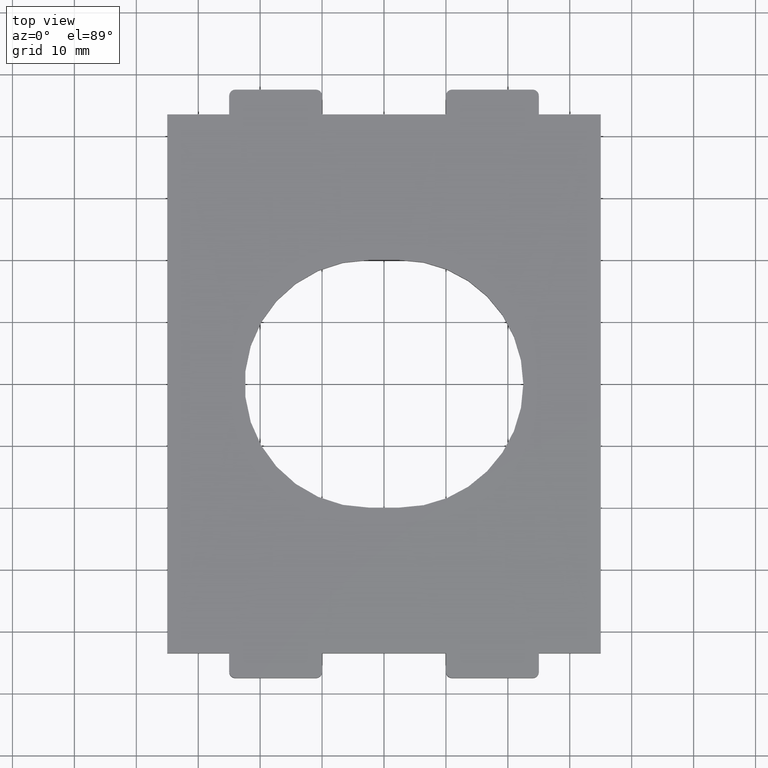
[diagram: clean part render]
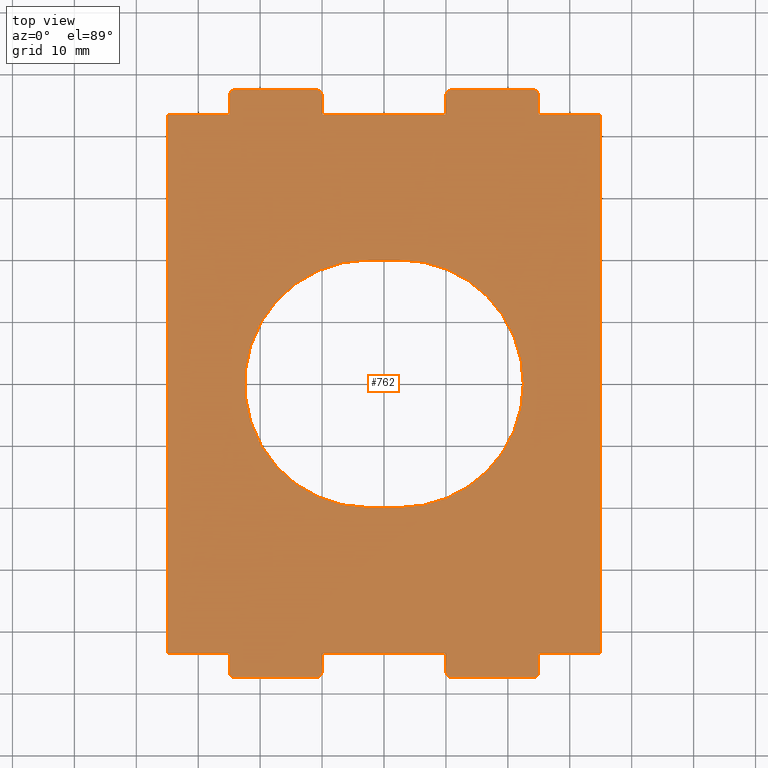
[diagram: same view with one face highlighted and labeled with its STEP entity id]
A machine part, top view. The second image highlights one B-rep face of the part: STEP entity #762.
In plain terms, the highlighted planar face has unit normal (0, 0, -1).
Its self-contained STEP definition (entity closure, byte-faithful):
#6 = VECTOR ( 'NONE', #397, 1000.000000000000000 ) ;
#7 = CARTESIAN_POINT ( 'NONE',  ( -23.99999999999998579, -46.49999999999998579, 2.500000000000000000 ) ) ;
#9 = CARTESIAN_POINT ( 'NONE',  ( -24.99999999999998579, 43.49999999999998579, 2.500000000000000000 ) ) ;
#10 = DIRECTION ( 'NONE',  ( 1.000000000000000000, 0.000000000000000000, 0.000000000000000000 ) ) ;
#12 = DIRECTION ( 'NONE',  ( -0.000000000000000000, 0.000000000000000000, 1.000000000000000000 ) ) ;
#23 = VERTEX_POINT ( 'NONE', #997 ) ;
#26 = EDGE_CURVE ( 'NONE', #224, #1124, #155, .T. ) ;
#28 = CARTESIAN_POINT ( 'NONE',  ( 35.00000000000000000, 43.50000000000001421, 2.500000000000000000 ) ) ;
#29 = EDGE_CURVE ( 'NONE', #809, #396, #336, .T. ) ;
#35 = EDGE_CURVE ( 'NONE', #81, #1177, #923, .T. ) ;
#36 = CARTESIAN_POINT ( 'NONE',  ( -10.99999999999998934, -47.49999999999998579, 2.500000000000000000 ) ) ;
#39 = DIRECTION ( 'NONE',  ( -0.000000000000000000, -0.000000000000000000, -1.000000000000000000 ) ) ;
#41 = DIRECTION ( 'NONE',  ( 1.000000000000000000, 1.982541115402065110E-16, -0.000000000000000000 ) ) ;
#45 = CARTESIAN_POINT ( 'NONE',  ( -24.99999999999998579, -46.49999999999998579, 2.500000000000000000 ) ) ;
#46 = ORIENTED_EDGE ( 'NONE', *, *, #486, .F. ) ;
#54 = DIRECTION ( 'NONE',  ( 1.000000000000000000, 0.000000000000000000, 0.000000000000000000 ) ) ;
#58 = CARTESIAN_POINT ( 'NONE',  ( -10.99999999999998934, 47.49999999999998579, 2.500000000000000000 ) ) ;
#61 = CARTESIAN_POINT ( 'NONE',  ( 10.00000000000001599, -43.49999999999999289, 2.500000000000000000 ) ) ;
#71 = AXIS2_PLACEMENT_3D ( 'NONE', #1151, #969, #502 ) ;
#73 = VERTEX_POINT ( 'NONE', #149 ) ;
#81 = VERTEX_POINT ( 'NONE', #421 ) ;
#88 = CARTESIAN_POINT ( 'NONE',  ( 10.00000000000001599, -47.49999999999998579, 2.500000000000000000 ) ) ;
#92 = EDGE_CURVE ( 'NONE', #202, #130, #715, .T. ) ;
#94 = DIRECTION ( 'NONE',  ( 0.000000000000000000, -1.000000000000000000, 0.000000000000000000 ) ) ;
#103 = CARTESIAN_POINT ( 'NONE',  ( -34.99999999999999289, -43.50000000000000000, 2.500000000000000000 ) ) ;
#106 = EDGE_CURVE ( 'NONE', #1182, #973, #546, .T. ) ;
#115 = AXIS2_PLACEMENT_3D ( 'NONE', #7, #12, #391 ) ;
#116 = VERTEX_POINT ( 'NONE', #704 ) ;
#126 = CARTESIAN_POINT ( 'NONE',  ( 2.500000000000000000, -3.469446951953614189E-15, 2.500000000000000000 ) ) ;
#130 = VERTEX_POINT ( 'NONE', #733 ) ;
#131 = DIRECTION ( 'NONE',  ( -1.000000000000000000, -1.982541115402065110E-16, 0.000000000000000000 ) ) ;
#132 = AXIS2_PLACEMENT_3D ( 'NONE', #1118, #569, #1138 ) ;
#140 = DIRECTION ( 'NONE',  ( -0.000000000000000000, 0.000000000000000000, 1.000000000000000000 ) ) ;
#145 = CARTESIAN_POINT ( 'NONE',  ( 25.00000000000001421, 43.50000000000001421, 2.500000000000000000 ) ) ;
#149 = CARTESIAN_POINT ( 'NONE',  ( 10.00000000000001599, 43.49999999999998579, 2.500000000000000000 ) ) ;
#154 = CARTESIAN_POINT ( 'NONE',  ( 11.00000000000001599, -47.49999999999998579, 2.500000000000000000 ) ) ;
#155 = LINE ( 'NONE', #1163, #1102 ) ;
#161 = EDGE_CURVE ( 'NONE', #656, #702, #557, .T. ) ;
#167 = EDGE_CURVE ( 'NONE', #190, #891, #837, .T. ) ;
#169 = VECTOR ( 'NONE', #420, 1000.000000000000000 ) ;
#182 = ORIENTED_EDGE ( 'NONE', *, *, #92, .F. ) ;
#187 = CIRCLE ( 'NONE', #288, 19.99999999999999645 ) ;
#190 = VERTEX_POINT ( 'NONE', #933 ) ;
#191 = LINE ( 'NONE', #947, #196 ) ;
#193 = DIRECTION ( 'NONE',  ( 1.000000000000000000, 0.000000000000000000, 0.000000000000000000 ) ) ;
#196 = VECTOR ( 'NONE', #1049, 1000.000000000000000 ) ;
#197 = PLANE ( 'NONE',  #732 ) ;
#198 = AXIS2_PLACEMENT_3D ( 'NONE', #850, #473, #10 ) ;
#199 = EDGE_CURVE ( 'NONE', #890, #532, #281, .T. ) ;
#202 = VERTEX_POINT ( 'NONE', #381 ) ;
#208 = VERTEX_POINT ( 'NONE', #1026 ) ;
#216 = ORIENTED_EDGE ( 'NONE', *, *, #199, .F. ) ;
#221 = CARTESIAN_POINT ( 'NONE',  ( 10.00000000000001599, -46.49999999999998579, 2.500000000000000000 ) ) ;
#222 = ORIENTED_EDGE ( 'NONE', *, *, #495, .T. ) ;
#224 = VERTEX_POINT ( 'NONE', #1101 ) ;
#225 = CARTESIAN_POINT ( 'NONE',  ( 25.00000000000001421, 46.49999999999998579, 2.500000000000000000 ) ) ;
#226 = VECTOR ( 'NONE', #690, 1000.000000000000000 ) ;
#240 = DIRECTION ( 'NONE',  ( 1.000000000000000000, 0.000000000000000000, 0.000000000000000000 ) ) ;
#246 = LINE ( 'NONE', #496, #1018 ) ;
#247 = VERTEX_POINT ( 'NONE', #565 ) ;
#249 = CARTESIAN_POINT ( 'NONE',  ( 10.00000000000001599, 46.49999999999998579, 2.500000000000000000 ) ) ;
#254 = LINE ( 'NONE', #630, #529 ) ;
#275 = DIRECTION ( 'NONE',  ( 0.000000000000000000, 0.000000000000000000, 1.000000000000000000 ) ) ;
#281 = LINE ( 'NONE', #88, #583 ) ;
#283 = CARTESIAN_POINT ( 'NONE',  ( -23.99999999999998579, 47.49999999999998579, 2.500000000000000000 ) ) ;
#288 = AXIS2_PLACEMENT_3D ( 'NONE', #1162, #712, #54 ) ;
#289 = EDGE_CURVE ( 'NONE', #1177, #450, #564, .T. ) ;
#299 = CARTESIAN_POINT ( 'NONE',  ( -24.99999999999998579, 46.49999999999998579, 2.500000000000000000 ) ) ;
#313 = CARTESIAN_POINT ( 'NONE',  ( 22.49999999999999645, -3.469446951953614189E-15, 2.500000000000000000 ) ) ;
#315 = VERTEX_POINT ( 'NONE', #477 ) ;
#316 = CARTESIAN_POINT ( 'NONE',  ( 25.00000000000001421, 47.49999999999998579, 2.500000000000000000 ) ) ;
#327 = CARTESIAN_POINT ( 'NONE',  ( 35.00000000000001421, -43.49999999999998579, 2.500000000000000000 ) ) ;
#328 = CARTESIAN_POINT ( 'NONE',  ( -23.99999999999998579, 47.49999999999998579, 2.500000000000000000 ) ) ;
#334 = DIRECTION ( 'NONE',  ( 1.000000000000000000, 0.000000000000000000, 0.000000000000000000 ) ) ;
#336 = LINE ( 'NONE', #531, #601 ) ;
#342 = CARTESIAN_POINT ( 'NONE',  ( 11.00000000000001599, 47.49999999999998579, 2.500000000000000000 ) ) ;
#344 = ORIENTED_EDGE ( 'NONE', *, *, #1147, .F. ) ;
#349 = DIRECTION ( 'NONE',  ( 1.595148023886719315E-16, -1.000000000000000000, 0.000000000000000000 ) ) ;
#356 = AXIS2_PLACEMENT_3D ( 'NONE', #1059, #39, #240 ) ;
#358 = VERTEX_POINT ( 'NONE', #948 ) ;
#362 = DIRECTION ( 'NONE',  ( 1.000000000000000000, 0.000000000000000000, 0.000000000000000000 ) ) ;
#364 = EDGE_CURVE ( 'NONE', #884, #315, #954, .T. ) ;
#368 = CARTESIAN_POINT ( 'NONE',  ( 2.500000000000000000, -3.469446951953614189E-15, 2.500000000000000000 ) ) ;
#381 = CARTESIAN_POINT ( 'NONE',  ( 11.00000000000001599, 47.49999999999998579, 2.500000000000000000 ) ) ;
#383 = DIRECTION ( 'NONE',  ( -0.000000000000000000, -0.000000000000000000, -1.000000000000000000 ) ) ;
#386 = ORIENTED_EDGE ( 'NONE', *, *, #409, .T. ) ;
#388 = CIRCLE ( 'NONE', #681, 19.99999999999999645 ) ;
#391 = DIRECTION ( 'NONE',  ( 1.000000000000000000, 0.000000000000000000, 0.000000000000000000 ) ) ;
#393 = CARTESIAN_POINT ( 'NONE',  ( -10.99999999999998934, -46.49999999999998579, 2.500000000000000000 ) ) ;
#396 = VERTEX_POINT ( 'NONE', #9 ) ;
#397 = DIRECTION ( 'NONE',  ( -1.595148023886719315E-16, 1.000000000000000000, -0.000000000000000000 ) ) ;
#400 = EDGE_CURVE ( 'NONE', #957, #901, #676, .T. ) ;
#408 = CARTESIAN_POINT ( 'NONE',  ( 35.00000000000000000, 43.50000000000001421, 2.500000000000000000 ) ) ;
#409 = EDGE_CURVE ( 'NONE', #1111, #957, #485, .T. ) ;
#414 = CARTESIAN_POINT ( 'NONE',  ( -9.999999999999987566, -46.49999999999998579, 2.500000000000000000 ) ) ;
#417 = ORIENTED_EDGE ( 'NONE', *, *, #819, .T. ) ;
#419 = ORIENTED_EDGE ( 'NONE', *, *, #503, .F. ) ;
#420 = DIRECTION ( 'NONE',  ( -1.000000000000000000, -0.000000000000000000, -0.000000000000000000 ) ) ;
#421 = CARTESIAN_POINT ( 'NONE',  ( -23.99999999999998579, -47.49999999999998579, 2.500000000000000000 ) ) ;
#422 = EDGE_CURVE ( 'NONE', #891, #1002, #388, .T. ) ;
#426 = VERTEX_POINT ( 'NONE', #249 ) ;
#428 = CARTESIAN_POINT ( 'NONE',  ( -10.99999999999998934, 47.49999999999998579, 2.500000000000000000 ) ) ;
#435 = ORIENTED_EDGE ( 'NONE', *, *, #488, .T. ) ;
#438 = ORIENTED_EDGE ( 'NONE', *, *, #1068, .F. ) ;
#440 = EDGE_CURVE ( 'NONE', #1171, #358, #921, .T. ) ;
#445 = VECTOR ( 'NONE', #131, 1000.000000000000000 ) ;
#450 = VERTEX_POINT ( 'NONE', #414 ) ;
#454 = EDGE_CURVE ( 'NONE', #116, #532, #996, .T. ) ;
#461 = DIRECTION ( 'NONE',  ( -1.000000000000000000, -1.982541115402065110E-16, 0.000000000000000000 ) ) ;
#463 = CARTESIAN_POINT ( 'NONE',  ( -9.999999999999987566, 46.49999999999998579, 2.500000000000000000 ) ) ;
#471 = DIRECTION ( 'NONE',  ( -0.000000000000000000, 1.000000000000000000, -0.000000000000000000 ) ) ;
#473 = DIRECTION ( 'NONE',  ( -0.000000000000000000, -0.000000000000000000, -1.000000000000000000 ) ) ;
#477 = CARTESIAN_POINT ( 'NONE',  ( -24.99999999999998579, -43.50000000000000000, 2.500000000000000000 ) ) ;
#485 = LINE ( 'NONE', #408, #6 ) ;
#486 = EDGE_CURVE ( 'NONE', #208, #23, #187, .T. ) ;
#488 = EDGE_CURVE ( 'NONE', #396, #224, #794, .T. ) ;
#495 = EDGE_CURVE ( 'NONE', #358, #1044, #876, .T. ) ;
#496 = CARTESIAN_POINT ( 'NONE',  ( 25.00000000000001421, -47.49999999999998579, 2.500000000000000000 ) ) ;
#499 = AXIS2_PLACEMENT_3D ( 'NONE', #1077, #140, #523 ) ;
#502 = DIRECTION ( 'NONE',  ( 1.000000000000000000, 0.000000000000000000, 0.000000000000000000 ) ) ;
#503 = EDGE_CURVE ( 'NONE', #1002, #208, #888, .T. ) ;
#508 = VECTOR ( 'NONE', #362, 1000.000000000000000 ) ;
#521 = AXIS2_PLACEMENT_3D ( 'NONE', #393, #944, #193 ) ;
#523 = DIRECTION ( 'NONE',  ( 1.000000000000000000, 0.000000000000000000, 0.000000000000000000 ) ) ;
#528 = CARTESIAN_POINT ( 'NONE',  ( -2.500000000000000000, 19.99999999999999645, 2.500000000000000000 ) ) ;
#529 = VECTOR ( 'NONE', #461, 1000.000000000000000 ) ;
#531 = CARTESIAN_POINT ( 'NONE',  ( -24.99999999999998579, 47.49999999999998579, 2.500000000000000000 ) ) ;
#532 = VERTEX_POINT ( 'NONE', #61 ) ;
#538 = DIRECTION ( 'NONE',  ( 1.000000000000000000, 1.982541115402065110E-16, -0.000000000000000000 ) ) ;
#546 = B_SPLINE_CURVE_WITH_KNOTS ( 'NONE', 1,
 ( #328, #428 ),
 .UNSPECIFIED., .F., .F.,
 ( 2, 2 ),
 ( 0.6500000000000000222, 0.9749999999999999778 ),
 .UNSPECIFIED. ) ;
#557 = LINE ( 'NONE', #928, #896 ) ;
#558 = EDGE_CURVE ( 'NONE', #809, #1182, #820, .T. ) ;
#560 = EDGE_CURVE ( 'NONE', #910, #901, #626, .T. ) ;
#564 = CIRCLE ( 'NONE', #521, 1.000000000000000888 ) ;
#565 = CARTESIAN_POINT ( 'NONE',  ( 25.00000000000001421, -43.49999999999998579, 2.500000000000000000 ) ) ;
#569 = DIRECTION ( 'NONE',  ( -0.000000000000000000, 0.000000000000000000, 1.000000000000000000 ) ) ;
#573 = CARTESIAN_POINT ( 'NONE',  ( 35.00000000000001421, -43.49999999999998579, 2.500000000000000000 ) ) ;
#577 = DIRECTION ( 'NONE',  ( 0.000000000000000000, -1.000000000000000000, 0.000000000000000000 ) ) ;
#581 = DIRECTION ( 'NONE',  ( -0.000000000000000000, 1.000000000000000000, -0.000000000000000000 ) ) ;
#583 = VECTOR ( 'NONE', #471, 1000.000000000000000 ) ;
#601 = VECTOR ( 'NONE', #895, 1000.000000000000000 ) ;
#606 = ORIENTED_EDGE ( 'NONE', *, *, #161, .F. ) ;
#612 = CARTESIAN_POINT ( 'NONE',  ( 35.00000000000000000, 43.50000000000001421, 2.500000000000000000 ) ) ;
#613 = CIRCLE ( 'NONE', #115, 1.000000000000000888 ) ;
#620 = DIRECTION ( 'NONE',  ( 0.000000000000000000, 0.000000000000000000, 1.000000000000000000 ) ) ;
#625 = ORIENTED_EDGE ( 'NONE', *, *, #35, .T. ) ;
#626 = LINE ( 'NONE', #316, #226 ) ;
#630 = CARTESIAN_POINT ( 'NONE',  ( 35.00000000000000000, 43.50000000000001421, 2.500000000000000000 ) ) ;
#642 = CARTESIAN_POINT ( 'NONE',  ( 35.00000000000001421, -43.49999999999998579, 2.500000000000000000 ) ) ;
#653 = CIRCLE ( 'NONE', #132, 1.000000000000000888 ) ;
#656 = VERTEX_POINT ( 'NONE', #463 ) ;
#661 = DIRECTION ( 'NONE',  ( 0.000000000000000000, 0.000000000000000000, -1.000000000000000000 ) ) ;
#665 = DIRECTION ( 'NONE',  ( 1.000000000000000000, 1.982541115402065110E-16, -0.000000000000000000 ) ) ;
#670 = VECTOR ( 'NONE', #538, 1000.000000000000000 ) ;
#676 = LINE ( 'NONE', #28, #970 ) ;
#678 = ORIENTED_EDGE ( 'NONE', *, *, #29, .T. ) ;
#681 = AXIS2_PLACEMENT_3D ( 'NONE', #126, #620, #334 ) ;
#683 = CARTESIAN_POINT ( 'NONE',  ( 0.000000000000000000, 0.000000000000000000, 2.500000000000000000 ) ) ;
#690 = DIRECTION ( 'NONE',  ( 0.000000000000000000, -1.000000000000000000, 0.000000000000000000 ) ) ;
#702 = VERTEX_POINT ( 'NONE', #913 ) ;
#704 = CARTESIAN_POINT ( 'NONE',  ( -9.999999999999987566, -43.49999999999998579, 2.500000000000000000 ) ) ;
#710 = CIRCLE ( 'NONE', #198, 1.000000000000000888 ) ;
#711 = ORIENTED_EDGE ( 'NONE', *, *, #364, .F. ) ;
#712 = DIRECTION ( 'NONE',  ( 0.000000000000000000, 0.000000000000000000, 1.000000000000000000 ) ) ;
#715 = B_SPLINE_CURVE_WITH_KNOTS ( 'NONE', 1,
 ( #342, #795 ),
 .UNSPECIFIED., .F., .F.,
 ( 2, 2 ),
 ( 0.6500000000000000222, 0.9749999999999999778 ),
 .UNSPECIFIED. ) ;
#720 = EDGE_CURVE ( 'NONE', #890, #1171, #653, .T. ) ;
#732 = AXIS2_PLACEMENT_3D ( 'NONE', #683, #661, #1030 ) ;
#733 = CARTESIAN_POINT ( 'NONE',  ( 24.00000000000001421, 47.49999999999998579, 2.500000000000000000 ) ) ;
#736 = ORIENTED_EDGE ( 'NONE', *, *, #1097, .T. ) ;
#739 = LINE ( 'NONE', #1103, #670 ) ;
#740 = EDGE_LOOP ( 'NONE', ( #979, #736, #711, #417, #625, #846, #1094, #1074, #216, #1104, #1143, #222, #862, #1040, #386, #1156, #1139, #1025, #182, #860, #751, #1065, #606, #344, #1135, #962, #678, #435 ) ) ;
#741 = VECTOR ( 'NONE', #581, 1000.000000000000000 ) ;
#744 = DIRECTION ( 'NONE',  ( 1.000000000000000000, 0.000000000000000000, 0.000000000000000000 ) ) ;
#751 = ORIENTED_EDGE ( 'NONE', *, *, #1203, .T. ) ;
#754 = DIRECTION ( 'NONE',  ( 1.000000000000000000, 0.000000000000000000, 0.000000000000000000 ) ) ;
#762 = ADVANCED_FACE ( 'NONE', ( #844, #1127 ), #197, .F. ) ;
#767 = CIRCLE ( 'NONE', #885, 1.000000000000000888 ) ;
#773 = CARTESIAN_POINT ( 'NONE',  ( -10.99999999999998934, -47.49999999999998579, 2.500000000000000000 ) ) ;
#777 = EDGE_CURVE ( 'NONE', #450, #116, #191, .T. ) ;
#794 = LINE ( 'NONE', #894, #445 ) ;
#795 = CARTESIAN_POINT ( 'NONE',  ( 24.00000000000001421, 47.49999999999998579, 2.500000000000000000 ) ) ;
#806 = CIRCLE ( 'NONE', #356, 1.000000000000000888 ) ;
#809 = VERTEX_POINT ( 'NONE', #299 ) ;
#819 = EDGE_CURVE ( 'NONE', #884, #81, #613, .T. ) ;
#820 = CIRCLE ( 'NONE', #71, 1.000000000000000888 ) ;
#834 = ORIENTED_EDGE ( 'NONE', *, *, #422, .F. ) ;
#837 = CIRCLE ( 'NONE', #1190, 19.99999999999999645 ) ;
#844 = FACE_BOUND ( 'NONE', #937, .T. ) ;
#846 = ORIENTED_EDGE ( 'NONE', *, *, #289, .T. ) ;
#850 = CARTESIAN_POINT ( 'NONE',  ( 24.00000000000001421, 46.49999999999998579, 2.500000000000000000 ) ) ;
#853 = EDGE_CURVE ( 'NONE', #426, #202, #806, .T. ) ;
#860 = ORIENTED_EDGE ( 'NONE', *, *, #853, .F. ) ;
#862 = ORIENTED_EDGE ( 'NONE', *, *, #889, .T. ) ;
#876 = CIRCLE ( 'NONE', #499, 1.000000000000000888 ) ;
#884 = VERTEX_POINT ( 'NONE', #45 ) ;
#885 = AXIS2_PLACEMENT_3D ( 'NONE', #1116, #383, #754 ) ;
#888 = LINE ( 'NONE', #528, #169 ) ;
#889 = EDGE_CURVE ( 'NONE', #1044, #247, #246, .T. ) ;
#890 = VERTEX_POINT ( 'NONE', #221 ) ;
#891 = VERTEX_POINT ( 'NONE', #313 ) ;
#894 = CARTESIAN_POINT ( 'NONE',  ( 35.00000000000000000, 43.50000000000001421, 2.500000000000000000 ) ) ;
#895 = DIRECTION ( 'NONE',  ( 0.000000000000000000, -1.000000000000000000, 0.000000000000000000 ) ) ;
#896 = VECTOR ( 'NONE', #94, 1000.000000000000000 ) ;
#901 = VERTEX_POINT ( 'NONE', #145 ) ;
#910 = VERTEX_POINT ( 'NONE', #225 ) ;
#913 = CARTESIAN_POINT ( 'NONE',  ( -9.999999999999987566, 43.50000000000000711, 2.500000000000000000 ) ) ;
#921 = B_SPLINE_CURVE_WITH_KNOTS ( 'NONE', 1,
 ( #154, #1061 ),
 .UNSPECIFIED., .F., .F.,
 ( 2, 2 ),
 ( 0.6500000000000000222, 0.9749999999999999778 ),
 .UNSPECIFIED. ) ;
#923 = B_SPLINE_CURVE_WITH_KNOTS ( 'NONE', 1,
 ( #1070, #36 ),
 .UNSPECIFIED., .F., .F.,
 ( 2, 2 ),
 ( 0.6500000000000000222, 0.9749999999999999778 ),
 .UNSPECIFIED. ) ;
#928 = CARTESIAN_POINT ( 'NONE',  ( -9.999999999999987566, 47.49999999999998579, 2.500000000000000000 ) ) ;
#933 = CARTESIAN_POINT ( 'NONE',  ( 2.499999999999996447, -20.00000000000000000, 2.500000000000000000 ) ) ;
#935 = CARTESIAN_POINT ( 'NONE',  ( 11.00000000000001599, -47.49999999999998579, 2.500000000000000000 ) ) ;
#937 = EDGE_LOOP ( 'NONE', ( #438, #46, #419, #834, #986 ) ) ;
#941 = CARTESIAN_POINT ( 'NONE',  ( 10.00000000000001599, 47.49999999999998579, 2.500000000000000000 ) ) ;
#944 = DIRECTION ( 'NONE',  ( -0.000000000000000000, 0.000000000000000000, 1.000000000000000000 ) ) ;
#946 = LINE ( 'NONE', #941, #1052 ) ;
#947 = CARTESIAN_POINT ( 'NONE',  ( -9.999999999999987566, -47.49999999999998579, 2.500000000000000000 ) ) ;
#948 = CARTESIAN_POINT ( 'NONE',  ( 24.00000000000001421, -47.49999999999998579, 2.500000000000000000 ) ) ;
#954 = LINE ( 'NONE', #1140, #741 ) ;
#957 = VERTEX_POINT ( 'NONE', #612 ) ;
#962 = ORIENTED_EDGE ( 'NONE', *, *, #558, .F. ) ;
#969 = DIRECTION ( 'NONE',  ( -0.000000000000000000, -0.000000000000000000, -1.000000000000000000 ) ) ;
#970 = VECTOR ( 'NONE', #1041, 1000.000000000000000 ) ;
#973 = VERTEX_POINT ( 'NONE', #58 ) ;
#979 = ORIENTED_EDGE ( 'NONE', *, *, #26, .T. ) ;
#986 = ORIENTED_EDGE ( 'NONE', *, *, #167, .F. ) ;
#991 = VECTOR ( 'NONE', #41, 1000.000000000000000 ) ;
#996 = LINE ( 'NONE', #327, #991 ) ;
#997 = CARTESIAN_POINT ( 'NONE',  ( -2.500000000000000000, -19.99999999999999645, 2.500000000000000000 ) ) ;
#1002 = VERTEX_POINT ( 'NONE', #1176 ) ;
#1005 = CARTESIAN_POINT ( 'NONE',  ( -2.500000000000000000, -19.99999999999999645, 2.500000000000000000 ) ) ;
#1018 = VECTOR ( 'NONE', #1075, 1000.000000000000000 ) ;
#1025 = ORIENTED_EDGE ( 'NONE', *, *, #1194, .F. ) ;
#1026 = CARTESIAN_POINT ( 'NONE',  ( -2.500000000000000000, 19.99999999999999645, 2.500000000000000000 ) ) ;
#1030 = DIRECTION ( 'NONE',  ( -1.000000000000000000, 0.000000000000000000, -0.000000000000000000 ) ) ;
#1040 = ORIENTED_EDGE ( 'NONE', *, *, #1145, .T. ) ;
#1041 = DIRECTION ( 'NONE',  ( -1.000000000000000000, -1.982541115402065110E-16, 0.000000000000000000 ) ) ;
#1044 = VERTEX_POINT ( 'NONE', #1181 ) ;
#1049 = DIRECTION ( 'NONE',  ( -0.000000000000000000, 1.000000000000000000, -0.000000000000000000 ) ) ;
#1052 = VECTOR ( 'NONE', #577, 1000.000000000000000 ) ;
#1053 = EDGE_CURVE ( 'NONE', #73, #702, #254, .T. ) ;
#1059 = CARTESIAN_POINT ( 'NONE',  ( 11.00000000000001599, 46.49999999999998579, 2.500000000000000000 ) ) ;
#1061 = CARTESIAN_POINT ( 'NONE',  ( 24.00000000000001421, -47.49999999999998579, 2.500000000000000000 ) ) ;
#1065 = ORIENTED_EDGE ( 'NONE', *, *, #1053, .T. ) ;
#1068 = EDGE_CURVE ( 'NONE', #23, #190, #1186, .T. ) ;
#1070 = CARTESIAN_POINT ( 'NONE',  ( -23.99999999999998579, -47.49999999999998579, 2.500000000000000000 ) ) ;
#1074 = ORIENTED_EDGE ( 'NONE', *, *, #454, .T. ) ;
#1075 = DIRECTION ( 'NONE',  ( -0.000000000000000000, 1.000000000000000000, -0.000000000000000000 ) ) ;
#1077 = CARTESIAN_POINT ( 'NONE',  ( 24.00000000000001421, -46.49999999999998579, 2.500000000000000000 ) ) ;
#1094 = ORIENTED_EDGE ( 'NONE', *, *, #777, .T. ) ;
#1097 = EDGE_CURVE ( 'NONE', #1124, #315, #739, .T. ) ;
#1101 = CARTESIAN_POINT ( 'NONE',  ( -35.00000000000000000, 43.50000000000000000, 2.500000000000000000 ) ) ;
#1102 = VECTOR ( 'NONE', #349, 1000.000000000000000 ) ;
#1103 = CARTESIAN_POINT ( 'NONE',  ( 35.00000000000001421, -43.49999999999998579, 2.500000000000000000 ) ) ;
#1104 = ORIENTED_EDGE ( 'NONE', *, *, #720, .T. ) ;
#1111 = VERTEX_POINT ( 'NONE', #642 ) ;
#1116 = CARTESIAN_POINT ( 'NONE',  ( -10.99999999999998934, 46.49999999999998579, 2.500000000000000000 ) ) ;
#1118 = CARTESIAN_POINT ( 'NONE',  ( 11.00000000000001599, -46.49999999999998579, 2.500000000000000000 ) ) ;
#1124 = VERTEX_POINT ( 'NONE', #103 ) ;
#1127 = FACE_OUTER_BOUND ( 'NONE', #740, .T. ) ;
#1135 = ORIENTED_EDGE ( 'NONE', *, *, #106, .F. ) ;
#1138 = DIRECTION ( 'NONE',  ( 1.000000000000000000, 0.000000000000000000, 0.000000000000000000 ) ) ;
#1139 = ORIENTED_EDGE ( 'NONE', *, *, #560, .F. ) ;
#1140 = CARTESIAN_POINT ( 'NONE',  ( -24.99999999999998579, -47.49999999999998579, 2.500000000000000000 ) ) ;
#1143 = ORIENTED_EDGE ( 'NONE', *, *, #440, .T. ) ;
#1145 = EDGE_CURVE ( 'NONE', #247, #1111, #1204, .T. ) ;
#1147 = EDGE_CURVE ( 'NONE', #973, #656, #767, .T. ) ;
#1151 = CARTESIAN_POINT ( 'NONE',  ( -23.99999999999998579, 46.49999999999998579, 2.500000000000000000 ) ) ;
#1156 = ORIENTED_EDGE ( 'NONE', *, *, #400, .T. ) ;
#1162 = CARTESIAN_POINT ( 'NONE',  ( -2.500000000000000000, -3.469446951953614189E-15, 2.500000000000000000 ) ) ;
#1163 = CARTESIAN_POINT ( 'NONE',  ( -35.00000000000000000, 43.50000000000000000, 2.500000000000000000 ) ) ;
#1171 = VERTEX_POINT ( 'NONE', #935 ) ;
#1176 = CARTESIAN_POINT ( 'NONE',  ( 2.500000000000000000, 19.99999999999999645, 2.500000000000000000 ) ) ;
#1177 = VERTEX_POINT ( 'NONE', #773 ) ;
#1181 = CARTESIAN_POINT ( 'NONE',  ( 25.00000000000001421, -46.49999999999998579, 2.500000000000000000 ) ) ;
#1182 = VERTEX_POINT ( 'NONE', #283 ) ;
#1186 = LINE ( 'NONE', #1005, #508 ) ;
#1190 = AXIS2_PLACEMENT_3D ( 'NONE', #368, #275, #744 ) ;
#1194 = EDGE_CURVE ( 'NONE', #130, #910, #710, .T. ) ;
#1201 = VECTOR ( 'NONE', #665, 1000.000000000000000 ) ;
#1203 = EDGE_CURVE ( 'NONE', #426, #73, #946, .T. ) ;
#1204 = LINE ( 'NONE', #573, #1201 ) ;